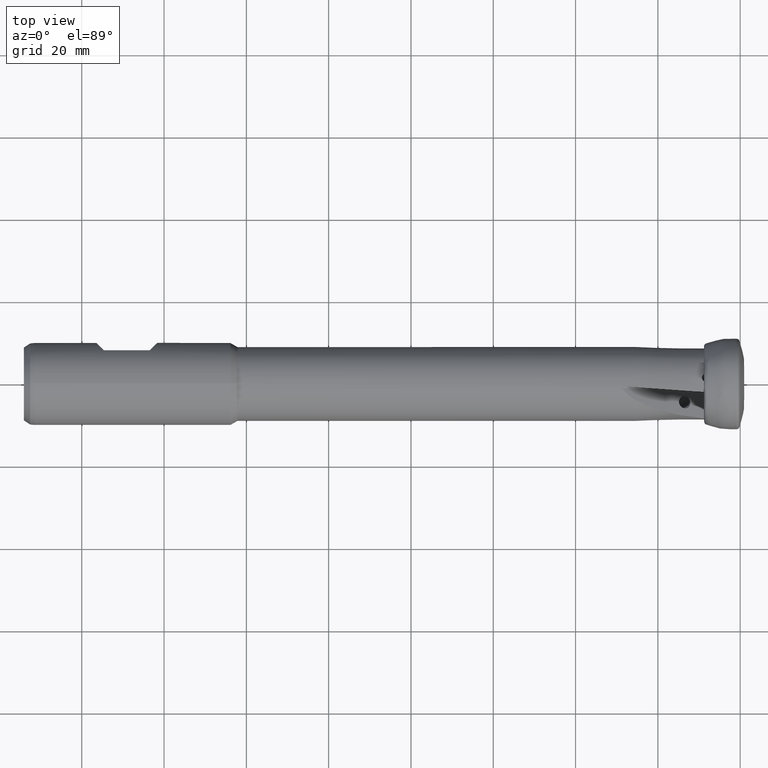
[diagram: clean part render]
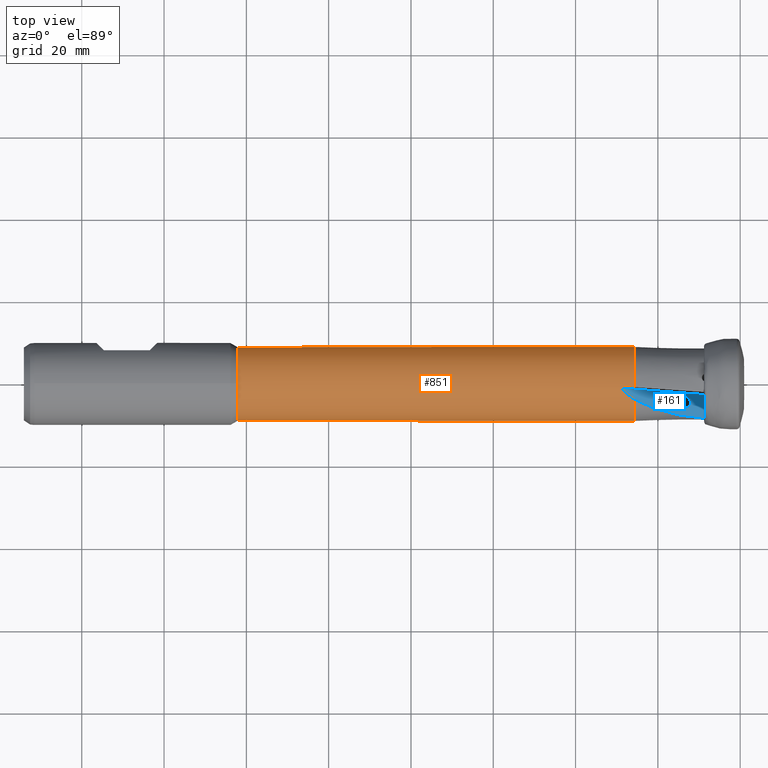
[diagram: same view with the hole feature highlighted: cylindrical wall and planar end face, labeled with their STEP entity ids]
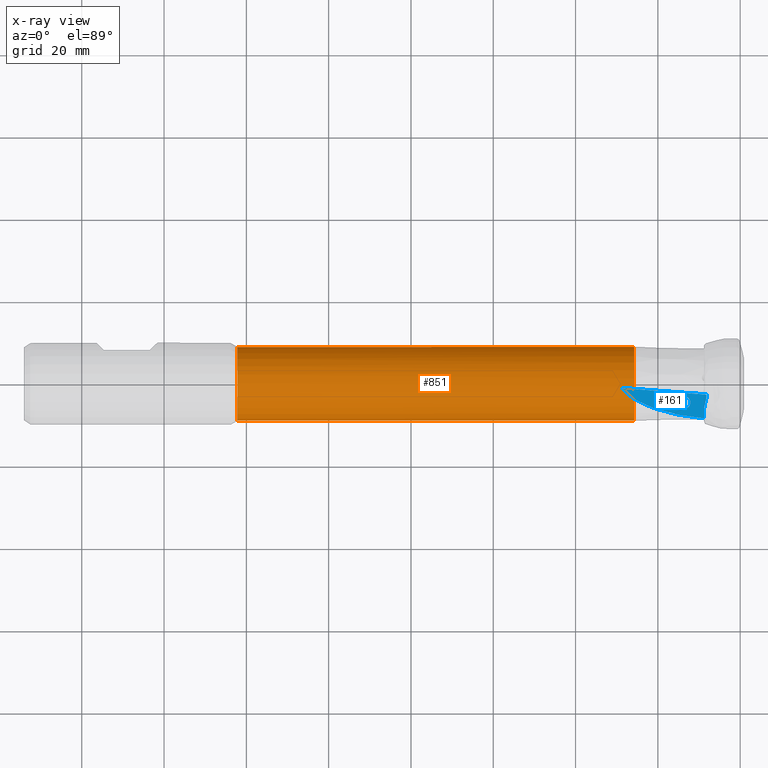
[diagram: x-ray of the same camera — body ghosted, the hole faces saturated]
A machine part, top view. The highlighted faces form one hole feature of diameter 18 mm: the cylindrical wall (entity #851, orange) and its adjacent planar end face (entity #161, blue) — they share a circular edge in the B-rep.
The next image is the same camera in x-ray (body ghosted, the hole faces saturated) — the bore reads through the body.
Wall:
#89 = CARTESIAN_POINT ( 'NONE',  ( -25.80000000000000400, 0.9024813766770126700, -8.954637198946260300 ) ) ;
#99 = DIRECTION ( 'NONE',  ( 1.000000000000000000, -0.0000000000000000000, -0.0000000000000000000 ) ) ;
#101 = ORIENTED_EDGE ( 'NONE', *, *, #1041, .F. ) ;
#110 = VERTEX_POINT ( 'NONE', #1782 ) ;
#125 = CARTESIAN_POINT ( 'NONE',  ( -27.76153232195649800, -0.7653176748784714700, 8.967401455077075300 ) ) ;
#175 =( BOUNDED_CURVE ( )  B_SPLINE_CURVE ( 3, ( #1009, #1655, #379, #587 ),
 .UNSPECIFIED., .F., .T. ) 
 B_SPLINE_CURVE_WITH_KNOTS ( ( 4, 4 ),
 ( 3.431709974709793400, 3.738506859362143300 ),
 .UNSPECIFIED. ) 
 CURVE ( )  GEOMETRIC_REPRESENTATION_ITEM ( )  RATIONAL_B_SPLINE_CURVE ( ( 1.000000000000000000, 0.9921716747887736600, 0.9921716747887736600, 1.000000000000000000 ) ) 
 REPRESENTATION_ITEM ( '' )  );
#202 = VERTEX_POINT ( 'NONE', #89 ) ;
#236 = CARTESIAN_POINT ( 'NONE',  ( -28.77810320892918500, 1.144255147853114200, -8.926990434670839700 ) ) ;
#325 = B_SPLINE_CURVE_WITH_KNOTS ( 'NONE', 3,
 ( #1723, #236, #1296, #2171, #466, #2588, #1748, #1954, #1320, #2367, #1100, #1530 ),
 .UNSPECIFIED., .F., .F.,
 ( 4, 2, 2, 2, 2, 4 ),
 ( 6.805474077711127700E-018, 8.002926427887409600E-005, 0.0001600585285577413900, 0.0003201170571154760000, 0.0006402341142309361800, 0.001280468228461866900 ),
 .UNSPECIFIED. ) ;
#333 = EDGE_CURVE ( 'NONE', #1930, #872, #175, .T. ) ;
#334 = CARTESIAN_POINT ( 'NONE',  ( -28.76240369658031100, -1.165935573245497200, 8.924157900835270500 ) ) ;
#364 = ORIENTED_EDGE ( 'NONE', *, *, #2056, .T. ) ;
#379 = CARTESIAN_POINT ( 'NONE',  ( -27.10367059698169000, -2.969350420524707000, 8.546155205608799900 ) ) ;
#396 = EDGE_LOOP ( 'NONE', ( #704, #2446, #2007, #2102, #2500, #2478, #684, #101 ) ) ;
#407 = CARTESIAN_POINT ( 'NONE',  ( -27.10722892770530400, -0.8110710252822659300, 8.963496661929990900 ) ) ;
#419 =( BOUNDED_CURVE ( )  B_SPLINE_CURVE ( 3, ( #556, #1845, #2484, #1209 ),
 .UNSPECIFIED., .F., .F. ) 
 B_SPLINE_CURVE_WITH_KNOTS ( ( 4, 4 ),
 ( 3.431709974709793400, 3.738506859362143300 ),
 .UNSPECIFIED. ) 
 CURVE ( )  GEOMETRIC_REPRESENTATION_ITEM ( )  RATIONAL_B_SPLINE_CURVE ( ( 1.000000000000000000, 0.9921716747887736600, 0.9921716747887736600, 1.000000000000000000 ) ) 
 REPRESENTATION_ITEM ( '' )  );
#421 = CARTESIAN_POINT ( 'NONE',  ( -25.80000000000000100, 0.0000000000000000000, 0.0000000000000000000 ) ) ;
#436 = CARTESIAN_POINT ( 'NONE',  ( -27.76153232195649800, 0.7653176748784714700, -8.967401455077075300 ) ) ;
#463 = CARTESIAN_POINT ( 'NONE',  ( -25.80000000000000100, 0.0000000000000000000, 0.0000000000000000000 ) ) ;
#466 = CARTESIAN_POINT ( 'NONE',  ( -28.80301845281909600, 1.041383028327240700, -8.939584550477015100 ) ) ;
#548 = CARTESIAN_POINT ( 'NONE',  ( -28.79083824673794100, -1.120396945584151800, 8.930027139944515500 ) ) ;
#556 = CARTESIAN_POINT ( 'NONE',  ( -28.76240369658031100, 1.165935573245497200, -8.924157900835270500 ) ) ;
#587 = CARTESIAN_POINT ( 'NONE',  ( -25.80000000000000100, -3.806648132895587900, 8.155331384580421200 ) ) ;
#605 = CARTESIAN_POINT ( 'NONE',  ( -26.45337205464825200, -0.8567931518824895000, 8.959241826816027700 ) ) ;
#621 = DIRECTION ( 'NONE',  ( 1.000000000000000000, -0.0000000000000000000, -0.0000000000000000000 ) ) ;
#638 = CARTESIAN_POINT ( 'NONE',  ( -25.80000000000000400, 0.9024813766770126700, -8.954637198946260300 ) ) ;
#649 = CIRCLE ( 'NONE', #1000, 8.999999999999996400 ) ;
#657 = CARTESIAN_POINT ( 'NONE',  ( 0.0000000000000000000, 0.0000000000000000000, 0.0000000000000000000 ) ) ;
#684 = ORIENTED_EDGE ( 'NONE', *, *, #706, .F. ) ;
#703 = AXIS2_PLACEMENT_3D ( 'NONE', #1908, #621, #2118 ) ;
#704 = ORIENTED_EDGE ( 'NONE', *, *, #333, .F. ) ;
#706 = EDGE_CURVE ( 'NONE', #202, #110, #1295, .T. ) ;
#740 = CARTESIAN_POINT ( 'NONE',  ( -28.77810320892918500, -1.144255147853114200, 8.926990434670839700 ) ) ;
#752 = CARTESIAN_POINT ( 'NONE',  ( -28.80301845281909600, -1.041383028327240700, 8.939584550477015100 ) ) ;
#786 = CARTESIAN_POINT ( 'NONE',  ( -27.76153232195649800, -0.7653176748784714700, 8.967401455077075300 ) ) ;
#843 = CARTESIAN_POINT ( 'NONE',  ( -26.45337205464825200, 0.8567931518824895000, -8.959241826816027700 ) ) ;
#851 = ADVANCED_FACE ( 'NONE', ( #2473, #2407 ), #1790, .T. ) ;
#872 = VERTEX_POINT ( 'NONE', #1313 ) ;
#878 = DIRECTION ( 'NONE',  ( 0.0000000000000000000, 0.0000000000000000000, -1.000000000000000000 ) ) ;
#942 = EDGE_CURVE ( 'NONE', #2196, #110, #325, .T. ) ;
#969 = CARTESIAN_POINT ( 'NONE',  ( -28.73485812911801300, -0.9279105110539825900, 8.952083510859614200 ) ) ;
#1000 = AXIS2_PLACEMENT_3D ( 'NONE', #463, #1733, #2573 ) ;
#1009 = CARTESIAN_POINT ( 'NONE',  ( -28.76240369658031100, -1.165935573245497200, 8.924157900835270500 ) ) ;
#1041 = EDGE_CURVE ( 'NONE', #872, #202, #649, .T. ) ;
#1043 =( BOUNDED_CURVE ( )  B_SPLINE_CURVE ( 3, ( #2728, #605, #407, #1892 ),
 .UNSPECIFIED., .F., .T. ) 
 B_SPLINE_CURVE_WITH_KNOTS ( ( 4, 4 ),
 ( 1.470351804282943500, 1.485658212942470000 ),
 .UNSPECIFIED. ) 
 CURVE ( )  GEOMETRIC_REPRESENTATION_ITEM ( )  RATIONAL_B_SPLINE_CURVE ( ( 1.000000000000000000, 0.9999804762497905800, 0.9999804762497905800, 1.000000000000000000 ) ) 
 REPRESENTATION_ITEM ( '' )  );
#1100 = CARTESIAN_POINT ( 'NONE',  ( -27.97262893588650800, 0.7505563616483939000, -8.968661250791136300 ) ) ;
#1182 = CARTESIAN_POINT ( 'NONE',  ( -28.49456225729207800, -0.8147282601477512400, 8.963070141089659200 ) ) ;
#1209 = CARTESIAN_POINT ( 'NONE',  ( -25.80000000000000100, 3.806648132895587900, -8.155331384580421200 ) ) ;
#1295 =( BOUNDED_CURVE ( )  B_SPLINE_CURVE ( 3, ( #638, #843, #1699, #436 ),
 .UNSPECIFIED., .F., .F. ) 
 B_SPLINE_CURVE_WITH_KNOTS ( ( 4, 4 ),
 ( 1.470351804282943500, 1.485658212942470000 ),
 .UNSPECIFIED. ) 
 CURVE ( )  GEOMETRIC_REPRESENTATION_ITEM ( )  RATIONAL_B_SPLINE_CURVE ( ( 1.000000000000000000, 0.9999804762497905800, 0.9999804762497905800, 1.000000000000000000 ) ) 
 REPRESENTATION_ITEM ( '' )  );
#1296 = CARTESIAN_POINT ( 'NONE',  ( -28.79083824673794100, 1.120396945584151800, -8.930027139944515500 ) ) ;
#1301 = B_SPLINE_CURVE_WITH_KNOTS ( 'NONE', 3,
 ( #1392, #740, #548, #2034, #752, #2245, #969, #2452, #1182, #2674, #1402, #125 ),
 .UNSPECIFIED., .F., .F.,
 ( 4, 2, 2, 2, 2, 4 ),
 ( 6.805474077711127700E-018, 8.002926427887409600E-005, 0.0001600585285577413900, 0.0003201170571154760000, 0.0006402341142309361800, 0.001280468228461866900 ),
 .UNSPECIFIED. ) ;
#1313 = CARTESIAN_POINT ( 'NONE',  ( -25.80000000000000100, -3.806648132895587900, 8.155331384580421200 ) ) ;
#1320 = CARTESIAN_POINT ( 'NONE',  ( -28.49456225729207800, 0.8147282601477512400, -8.963070141089659200 ) ) ;
#1369 = CIRCLE ( 'NONE', #1671, 8.999999999999996400 ) ;
#1392 = CARTESIAN_POINT ( 'NONE',  ( -28.76240369658031100, -1.165935573245497200, 8.924157900835270500 ) ) ;
#1402 = CARTESIAN_POINT ( 'NONE',  ( -27.97262893588650800, -0.7505563616483939000, 8.968661250791136300 ) ) ;
#1407 = CARTESIAN_POINT ( 'NONE',  ( -25.80000000000000400, -0.9024813766770126700, 8.954637198946260300 ) ) ;
#1492 = VERTEX_POINT ( 'NONE', #1407 ) ;
#1530 = CARTESIAN_POINT ( 'NONE',  ( -27.76153232195649800, 0.7653176748784714700, -8.967401455077075300 ) ) ;
#1588 = DIRECTION ( 'NONE',  ( 0.0000000000000000000, 0.0000000000000000000, -1.000000000000000000 ) ) ;
#1616 = AXIS2_PLACEMENT_3D ( 'NONE', #657, #2152, #878 ) ;
#1634 = EDGE_CURVE ( 'NONE', #1641, #1492, #1369, .T. ) ;
#1641 = VERTEX_POINT ( 'NONE', #1805 ) ;
#1655 = CARTESIAN_POINT ( 'NONE',  ( -28.09892970783095500, -2.082167746144529400, 8.804452748191677000 ) ) ;
#1671 = AXIS2_PLACEMENT_3D ( 'NONE', #421, #99, #1588 ) ;
#1699 = CARTESIAN_POINT ( 'NONE',  ( -27.10722892770530400, 0.8110710252822659300, -8.963496661929990900 ) ) ;
#1723 = CARTESIAN_POINT ( 'NONE',  ( -28.76240369658031100, 1.165935573245497200, -8.924157900835270500 ) ) ;
#1733 = DIRECTION ( 'NONE',  ( 1.000000000000000000, -0.0000000000000000000, -0.0000000000000000000 ) ) ;
#1748 = CARTESIAN_POINT ( 'NONE',  ( -28.73485812911801300, 0.9279105110539825900, -8.952083510859614200 ) ) ;
#1782 = CARTESIAN_POINT ( 'NONE',  ( -27.76153232195649800, 0.7653176748784714700, -8.967401455077075300 ) ) ;
#1790 = CYLINDRICAL_SURFACE ( 'NONE', #1616, 8.999999999999991100 ) ;
#1793 = EDGE_CURVE ( 'NONE', #1930, #2320, #1301, .T. ) ;
#1805 = CARTESIAN_POINT ( 'NONE',  ( -25.80000000000000100, 3.806648132895587900, -8.155331384580421200 ) ) ;
#1845 = CARTESIAN_POINT ( 'NONE',  ( -28.09892970783095500, 2.082167746144529400, -8.804452748191677000 ) ) ;
#1849 = EDGE_CURVE ( 'Kante68', #2196, #1641, #419, .T. ) ;
#1892 = CARTESIAN_POINT ( 'NONE',  ( -27.76153232195649800, -0.7653176748784714700, 8.967401455077075300 ) ) ;
#1908 = CARTESIAN_POINT ( 'NONE',  ( -122.1447441116742100, 0.0000000000000000000, 0.0000000000000000000 ) ) ;
#1911 = VERTEX_POINT ( 'NONE', #2361 ) ;
#1930 = VERTEX_POINT ( 'NONE', #334 ) ;
#1954 = CARTESIAN_POINT ( 'NONE',  ( -28.59918810986392800, 0.8425848702749376700, -8.960653946230250400 ) ) ;
#2007 = ORIENTED_EDGE ( 'NONE', *, *, #2503, .F. ) ;
#2034 = CARTESIAN_POINT ( 'NONE',  ( -28.80367512505797500, -1.068858028050538900, 8.936342459400926000 ) ) ;
#2056 = EDGE_CURVE ( 'NONE', #1911, #1911, #2067, .T. ) ;
#2067 = CIRCLE ( 'NONE', #703, 8.999999999999984000 ) ;
#2102 = ORIENTED_EDGE ( 'NONE', *, *, #1634, .F. ) ;
#2118 = DIRECTION ( 'NONE',  ( 0.0000000000000000000, 0.0000000000000000000, -1.000000000000000000 ) ) ;
#2152 = DIRECTION ( 'NONE',  ( 1.000000000000000000, -0.0000000000000000000, -0.0000000000000000000 ) ) ;
#2171 = CARTESIAN_POINT ( 'NONE',  ( -28.80367512505797500, 1.068858028050538900, -8.936342459400926000 ) ) ;
#2196 = VERTEX_POINT ( 'NONE', #2260 ) ;
#2245 = CARTESIAN_POINT ( 'NONE',  ( -28.77747139688768700, -0.9653547382875191700, 8.948222863592961900 ) ) ;
#2260 = CARTESIAN_POINT ( 'NONE',  ( -28.76240369658031100, 1.165935573245497200, -8.924157900835270500 ) ) ;
#2320 = VERTEX_POINT ( 'NONE', #786 ) ;
#2361 = CARTESIAN_POINT ( 'NONE',  ( -122.1447441116742100, 0.0000000000000000000, -8.999999999999984000 ) ) ;
#2367 = CARTESIAN_POINT ( 'NONE',  ( -28.18484055454054600, 0.7543314838438707200, -8.968423383203315800 ) ) ;
#2407 = FACE_OUTER_BOUND ( 'NONE', #2677, .T. ) ;
#2446 = ORIENTED_EDGE ( 'NONE', *, *, #1793, .T. ) ;
#2452 = CARTESIAN_POINT ( 'NONE',  ( -28.59918810986392800, -0.8425848702749376700, 8.960653946230250400 ) ) ;
#2473 = FACE_OUTER_BOUND ( 'NONE', #396, .T. ) ;
#2478 = ORIENTED_EDGE ( 'NONE', *, *, #942, .T. ) ;
#2484 = CARTESIAN_POINT ( 'NONE',  ( -27.10367059698169000, 2.969350420524707000, -8.546155205608799900 ) ) ;
#2500 = ORIENTED_EDGE ( 'NONE', *, *, #1849, .F. ) ;
#2503 = EDGE_CURVE ( 'NONE', #1492, #2320, #1043, .T. ) ;
#2573 = DIRECTION ( 'NONE',  ( 0.0000000000000000000, 0.0000000000000000000, -1.000000000000000000 ) ) ;
#2588 = CARTESIAN_POINT ( 'NONE',  ( -28.77747139688768700, 0.9653547382875191700, -8.948222863592961900 ) ) ;
#2674 = CARTESIAN_POINT ( 'NONE',  ( -28.18484055454054600, -0.7543314838438707200, 8.968423383203315800 ) ) ;
#2677 = EDGE_LOOP ( 'NONE', ( #364 ) ) ;
#2728 = CARTESIAN_POINT ( 'NONE',  ( -25.80000000000000400, -0.9024813766770126700, 8.954637198946260300 ) ) ;
End face:
#19 = CARTESIAN_POINT ( 'NONE',  ( -14.87725612580322100, -4.484332919031650100, 3.856752298297711600 ) ) ;
#161 = ADVANCED_FACE ( 'NONE', ( #2090, #2652 ), #1383, .F. ) ;
#175 =( BOUNDED_CURVE ( )  B_SPLINE_CURVE ( 3, ( #1009, #1655, #379, #587 ),
 .UNSPECIFIED., .F., .T. ) 
 B_SPLINE_CURVE_WITH_KNOTS ( ( 4, 4 ),
 ( 3.431709974709793400, 3.738506859362143300 ),
 .UNSPECIFIED. ) 
 CURVE ( )  GEOMETRIC_REPRESENTATION_ITEM ( )  RATIONAL_B_SPLINE_CURVE ( ( 1.000000000000000000, 0.9921716747887736600, 0.9921716747887736600, 1.000000000000000000 ) ) 
 REPRESENTATION_ITEM ( '' )  );
#207 = CARTESIAN_POINT ( 'NONE',  ( -8.797184076515909700, -6.674802271092787000, 1.756976075909824100 ) ) ;
#225 = VECTOR ( 'NONE', #2124, 1000.000000000000200 ) ;
#279 = VERTEX_POINT ( 'NONE', #2125 ) ;
#287 = ORIENTED_EDGE ( 'NONE', *, *, #1005, .F. ) ;
#333 = EDGE_CURVE ( 'NONE', #1930, #872, #175, .T. ) ;
#334 = CARTESIAN_POINT ( 'NONE',  ( -28.76240369658031100, -1.165935573245497200, 8.924157900835270500 ) ) ;
#376 = CARTESIAN_POINT ( 'NONE',  ( -8.794169598414308500, -8.383636464189042000, 2.031887600213532900 ) ) ;
#379 = CARTESIAN_POINT ( 'NONE',  ( -27.10367059698169000, -2.969350420524707000, 8.546155205608799900 ) ) ;
#425 = CARTESIAN_POINT ( 'NONE',  ( -8.745715401259209500, -5.615368871797185700, 1.565012564350778000 ) ) ;
#501 = ORIENTED_EDGE ( 'NONE', *, *, #2246, .T. ) ;
#581 = CIRCLE ( 'NONE', #1476, 1.500000000000006900 ) ;
#587 = CARTESIAN_POINT ( 'NONE',  ( -25.80000000000000100, -3.806648132895587900, 8.155331384580421200 ) ) ;
#626 = CARTESIAN_POINT ( 'NONE',  ( -8.798472437129635900, -7.528864161216559700, 1.895502659245164900 ) ) ;
#652 = CARTESIAN_POINT ( 'NONE',  ( -8.794711722337789100, -6.248069944386728000, 1.687023242521429800 ) ) ;
#711 = EDGE_CURVE ( 'NONE', #2161, #279, #1415, .T. ) ;
#737 = EDGE_CURVE ( 'NONE', #1815, #2161, #2621, .T. ) ;
#797 = VECTOR ( 'NONE', #2684, 1000.000000000000000 ) ;
#858 = CARTESIAN_POINT ( 'NONE',  ( -8.163936368343122800, -2.135715081671365500, 0.7679520648286447500 ) ) ;
#872 = VERTEX_POINT ( 'NONE', #1313 ) ;
#885 = DIRECTION ( 'NONE',  ( -0.9273309213448913700, 0.0000000000000000000, 0.3742423844484144000 ) ) ;
#901 = DIRECTION ( 'NONE',  ( -0.9273309213448913700, 0.0000000000000000000, 0.3742423844484145100 ) ) ;
#961 = ORIENTED_EDGE ( 'NONE', *, *, #333, .T. ) ;
#990 = EDGE_LOOP ( 'NONE', ( #1632, #1578, #1752, #501, #961 ) ) ;
#1005 = EDGE_CURVE ( 'NONE', #1471, #1471, #581, .T. ) ;
#1006 = CARTESIAN_POINT ( 'NONE',  ( -25.80000000000000100, -3.806648132895587900, 8.155331384580421200 ) ) ;
#1009 = CARTESIAN_POINT ( 'NONE',  ( -28.76240369658031100, -1.165935573245497200, 8.924157900835270500 ) ) ;
#1057 = CARTESIAN_POINT ( 'NONE',  ( -8.170853370399104400, -3.360708673595850500, 0.9686885192707175300 ) ) ;
#1070 = CARTESIAN_POINT ( 'NONE',  ( -8.583149277834555900, -4.787650482759149300, 1.365656019581442000 ) ) ;
#1310 = DIRECTION ( 'NONE',  ( 0.3701102517259637900, 0.1481915788479659100, 0.9170919569628178700 ) ) ;
#1313 = CARTESIAN_POINT ( 'NONE',  ( -25.80000000000000100, -3.806648132895587900, 8.155331384580421200 ) ) ;
#1383 = PLANE ( 'NONE',  #1665 ) ;
#1415 = LINE ( 'NONE', #858, #225 ) ;
#1471 = VERTEX_POINT ( 'NONE', #19 ) ;
#1476 = AXIS2_PLACEMENT_3D ( 'NONE', #2354, #1310, #885 ) ;
#1496 = CARTESIAN_POINT ( 'NONE',  ( -8.715821463094544100, -5.406683736670564700, 1.519227152847681700 ) ) ;
#1510 = CARTESIAN_POINT ( 'NONE',  ( -8.635144973380567600, -4.992725463209608500, 1.419777664336399700 ) ) ;
#1578 = ORIENTED_EDGE ( 'NONE', *, *, #737, .T. ) ;
#1632 = ORIENTED_EDGE ( 'NONE', *, *, #2373, .T. ) ;
#1653 = CARTESIAN_POINT ( 'NONE',  ( -15.66697050941597900, -7.886262953260661000, 4.725169872093461600 ) ) ;
#1655 = CARTESIAN_POINT ( 'NONE',  ( -28.09892970783095500, -2.082167746144529400, 8.804452748191677000 ) ) ;
#1665 = AXIS2_PLACEMENT_3D ( 'NONE', #2433, #2654, #901 ) ;
#1710 = CARTESIAN_POINT ( 'NONE',  ( -8.288926136719496200, -3.768308243949377400, 1.082202506982510500 ) ) ;
#1724 = CARTESIAN_POINT ( 'NONE',  ( -8.794169598414308500, -8.383636464189042000, 2.031887600213532900 ) ) ;
#1752 = ORIENTED_EDGE ( 'NONE', *, *, #711, .T. ) ;
#1815 = VERTEX_POINT ( 'NONE', #2236 ) ;
#1828 = EDGE_LOOP ( 'NONE', ( #287 ) ) ;
#1915 = CARTESIAN_POINT ( 'NONE',  ( -8.797051012171845500, -6.888392089663690300, 1.791436048786108100 ) ) ;
#1927 = CARTESIAN_POINT ( 'NONE',  ( -8.785071907263720400, -6.036076451651913600, 1.648877182563191400 ) ) ;
#1930 = VERTEX_POINT ( 'NONE', #334 ) ;
#1949 = CARTESIAN_POINT ( 'NONE',  ( -29.08807184340199800, -1.143162637986714100, 9.051907753703133600 ) ) ;
#2014 = LINE ( 'NONE', #1949, #797 ) ;
#2090 = FACE_BOUND ( 'NONE', #1828, .T. ) ;
#2124 = DIRECTION ( 'NONE',  ( 0.005572156574991091200, 0.9868229100296730400, -0.1617080558032638100 ) ) ;
#2125 = CARTESIAN_POINT ( 'NONE',  ( -8.166592623389821200, -2.606134980984219600, 0.8450385274106305700 ) ) ;
#2161 = VERTEX_POINT ( 'NONE', #2569 ) ;
#2236 = CARTESIAN_POINT ( 'NONE',  ( -8.794169598414308500, -8.383636464189042000, 2.031887600213532900 ) ) ;
#2246 = EDGE_CURVE ( 'NONE', #279, #1930, #2014, .T. ) ;
#2343 = CARTESIAN_POINT ( 'NONE',  ( -8.408073088947730900, -4.175543601684964300, 1.196091150661197300 ) ) ;
#2354 = CARTESIAN_POINT ( 'NONE',  ( -13.48625974378587800, -4.484332919031650100, 3.295388721625087700 ) ) ;
#2373 = EDGE_CURVE ( 'NONE', #872, #1815, #2616, .T. ) ;
#2433 = CARTESIAN_POINT ( 'NONE',  ( -8.163936368343124500, -2.135715081671365500, 0.7679520648286447500 ) ) ;
#2541 = CARTESIAN_POINT ( 'NONE',  ( -8.795760705381534100, -7.956295780333182000, 1.963476351842994500 ) ) ;
#2569 = CARTESIAN_POINT ( 'NONE',  ( -8.170853370399104400, -3.360708673595850500, 0.9686885192707175300 ) ) ;
#2616 =( BOUNDED_CURVE ( )  B_SPLINE_CURVE ( 3, ( #1006, #2700, #1653, #376 ),
 .UNSPECIFIED., .F., .T. ) 
 B_SPLINE_CURVE_WITH_KNOTS ( ( 4, 4 ),
 ( 0.6286591539387579300, 1.548351485323638600 ),
 .UNSPECIFIED. ) 
 CURVE ( )  GEOMETRIC_REPRESENTATION_ITEM ( )  RATIONAL_B_SPLINE_CURVE ( ( 1.000000000000000000, 0.9307471875815631600, 0.9307471875815631600, 1.000000000000000000 ) ) 
 REPRESENTATION_ITEM ( '' )  );
#2621 = B_SPLINE_CURVE_WITH_KNOTS ( 'NONE', 3,
 ( #1724, #2541, #626, #1915, #207, #652, #1927, #425, #1496, #1510, #1070, #2343, #1710, #1057 ),
 .UNSPECIFIED., .F., .F.,
 ( 4, 2, 2, 2, 2, 2, 4 ),
 ( 8.443362816253648200E-005, 0.001382786671819604700, 0.002031963193648137400, 0.002681139715476670000, 0.003330316237305202200, 0.003979492759133736200, 0.005277845802790803200 ),
 .UNSPECIFIED. ) ;
#2652 = FACE_OUTER_BOUND ( 'NONE', #990, .T. ) ;
#2654 = DIRECTION ( 'NONE',  ( -0.3701102517259637900, -0.1481915788479658500, -0.9170919569628177600 ) ) ;
#2684 = DIRECTION ( 'NONE',  ( -0.9289711258367762100, 0.06495998921732400200, 0.3644075289595945000 ) ) ;
#2700 = CARTESIAN_POINT ( 'NONE',  ( -21.75735703917929000, -6.247082306297738100, 6.918190657281954300 ) ) ;